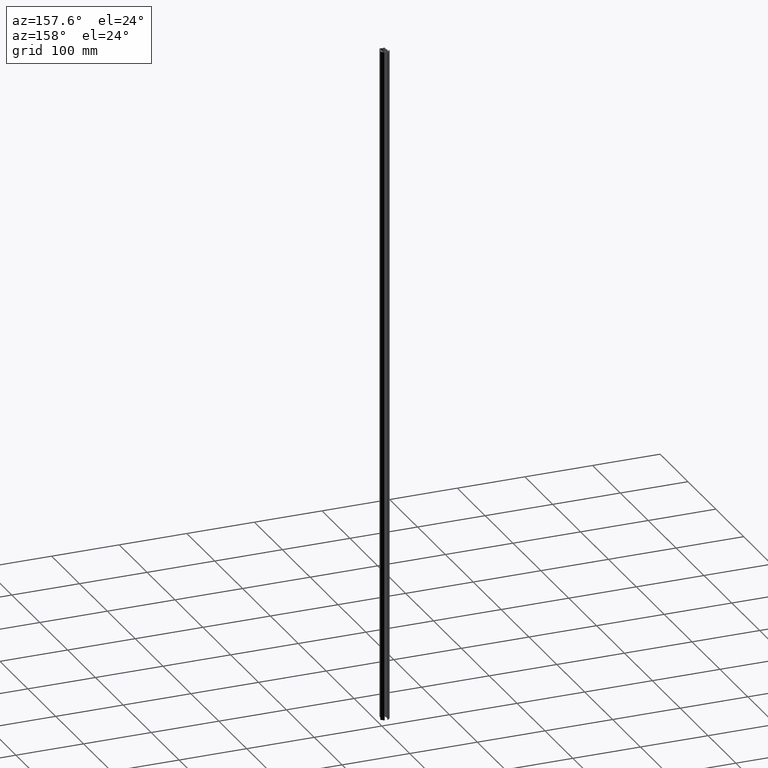
[diagram: clean part render]
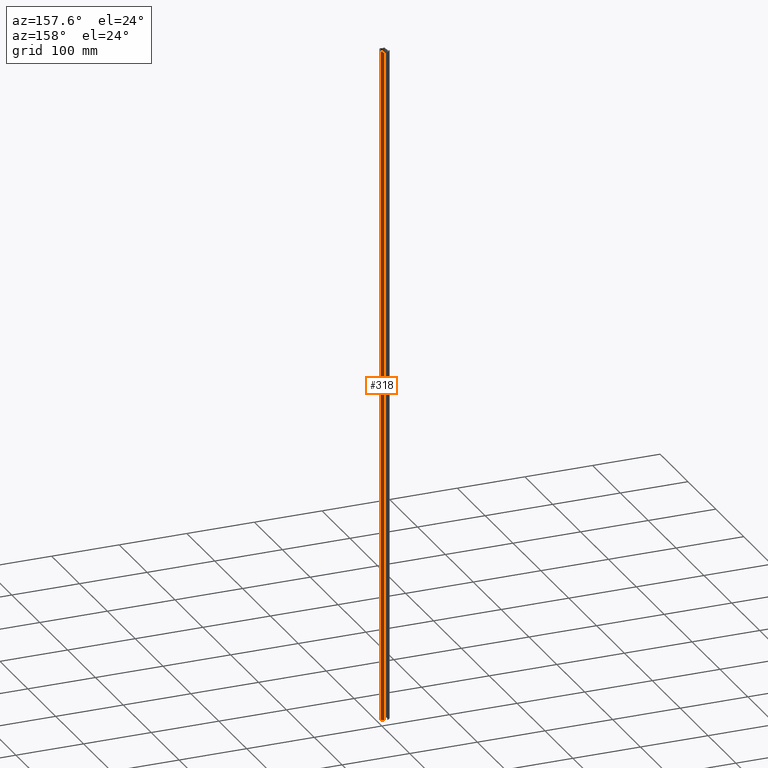
[diagram: same view with one face highlighted and labeled with its STEP entity id]
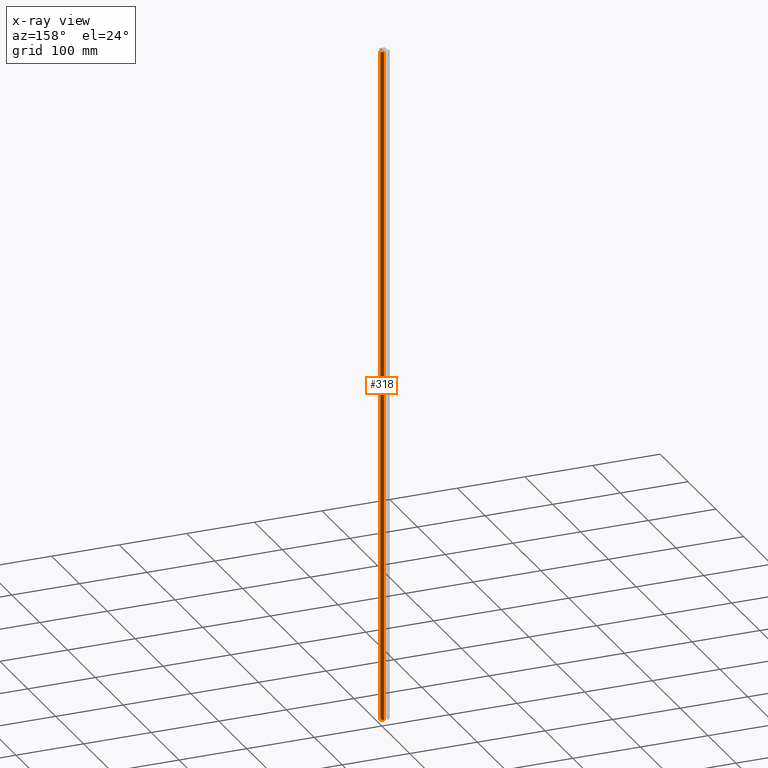
[diagram: x-ray of the same camera — body ghosted, the highlighted face saturated]
A machine part, auxiliary view. The second image highlights one B-rep face of the part: STEP entity #318.
The next image is the same camera in x-ray: the body ghosted, the highlighted face saturated — about 0% of this face is hidden behind the body in this view.
In plain terms, the highlighted planar face has unit normal (0.7065, 0.7077, -0).
Its self-contained STEP definition (entity closure, byte-faithful):
#18 = CARTESIAN_POINT ( 'NONE',  ( 3.004552497557162000, 14.97539663620172200, -1000.000000000000000 ) ) ;
#19 = LINE ( 'NONE', #1112, #1730 ) ;
#34 = DIRECTION ( 'NONE',  ( -0.7077094802882029100, 0.7065035679387625700, 0.0000000000000000000 ) ) ;
#54 = VERTEX_POINT ( 'NONE', #368 ) ;
#77 = EDGE_CURVE ( 'NONE', #646, #595, #1471, .T. ) ;
#246 = CARTESIAN_POINT ( 'NONE',  ( 6.787926605572439900, 11.19846926612970100, -1000.000000000000000 ) ) ;
#258 = DIRECTION ( 'NONE',  ( -0.7077094802882029100, 0.7065035679387625700, 0.0000000000000000000 ) ) ;
#270 = FACE_OUTER_BOUND ( 'NONE', #467, .T. ) ;
#273 = VERTEX_POINT ( 'NONE', #728 ) ;
#282 = VECTOR ( 'NONE', #34, 1000.000000000000000 ) ;
#318 = ADVANCED_FACE ( 'NONE', ( #270 ), #1157, .T. ) ;
#368 = CARTESIAN_POINT ( 'NONE',  ( 3.004552497557138500, 14.97539663620172400, -1000.000000000000000 ) ) ;
#391 = CARTESIAN_POINT ( 'NONE',  ( 6.787926605572442500, 11.19846926612969700, 0.0000000000000000000 ) ) ;
#436 = VECTOR ( 'NONE', #1102, 1000.000000000000000 ) ;
#467 = EDGE_LOOP ( 'NONE', ( #1674, #1438, #1392, #1608 ) ) ;
#595 = VERTEX_POINT ( 'NONE', #1683 ) ;
#637 = EDGE_CURVE ( 'NONE', #595, #54, #19, .T. ) ;
#646 = VERTEX_POINT ( 'NONE', #391 ) ;
#698 = DIRECTION ( 'NONE',  ( 0.0000000000000000000, 0.0000000000000000000, 1.000000000000000000 ) ) ;
#728 = CARTESIAN_POINT ( 'NONE',  ( 3.004552497557138500, 14.97539663620172400, 0.0000000000000000000 ) ) ;
#872 = EDGE_CURVE ( 'NONE', #646, #273, #1423, .T. ) ;
#965 = VECTOR ( 'NONE', #698, 1000.000000000000000 ) ;
#1102 = DIRECTION ( 'NONE',  ( -0.0000000000000000000, -0.0000000000000000000, -1.000000000000000000 ) ) ;
#1112 = CARTESIAN_POINT ( 'NONE',  ( 6.787926605572439900, 11.19846926612970100, -1000.000000000000000 ) ) ;
#1157 = PLANE ( 'NONE',  #1290 ) ;
#1290 = AXIS2_PLACEMENT_3D ( 'NONE', #1325, #1610, #1582 ) ;
#1325 = CARTESIAN_POINT ( 'NONE',  ( 6.787926605572439900, 11.19846926612970100, -1000.000000000000000 ) ) ;
#1392 = ORIENTED_EDGE ( 'NONE', *, *, #872, .F. ) ;
#1423 = LINE ( 'NONE', #1452, #282 ) ;
#1438 = ORIENTED_EDGE ( 'NONE', *, *, #1616, .T. ) ;
#1452 = CARTESIAN_POINT ( 'NONE',  ( 6.787926605572439900, 11.19846926612970100, 0.0000000000000000000 ) ) ;
#1471 = LINE ( 'NONE', #246, #436 ) ;
#1504 = LINE ( 'NONE', #18, #965 ) ;
#1582 = DIRECTION ( 'NONE',  ( -0.7077094802881988000, 0.7065035679387666700, 0.0000000000000000000 ) ) ;
#1608 = ORIENTED_EDGE ( 'NONE', *, *, #77, .T. ) ;
#1610 = DIRECTION ( 'NONE',  ( 0.7065035679387666700, 0.7077094802881988000, -0.0000000000000000000 ) ) ;
#1616 = EDGE_CURVE ( 'NONE', #54, #273, #1504, .T. ) ;
#1674 = ORIENTED_EDGE ( 'NONE', *, *, #637, .T. ) ;
#1683 = CARTESIAN_POINT ( 'NONE',  ( 6.787926605572442500, 11.19846926612969700, -1000.000000000000000 ) ) ;
#1730 = VECTOR ( 'NONE', #258, 1000.000000000000000 ) ;